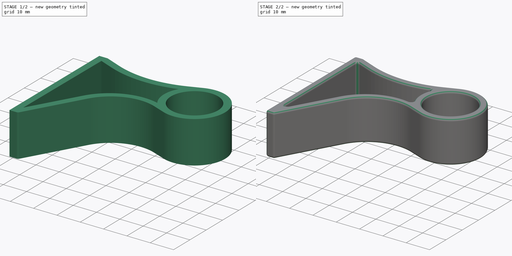
[diagram: build sequence overview — one tinted view per stage of 2, left to right]
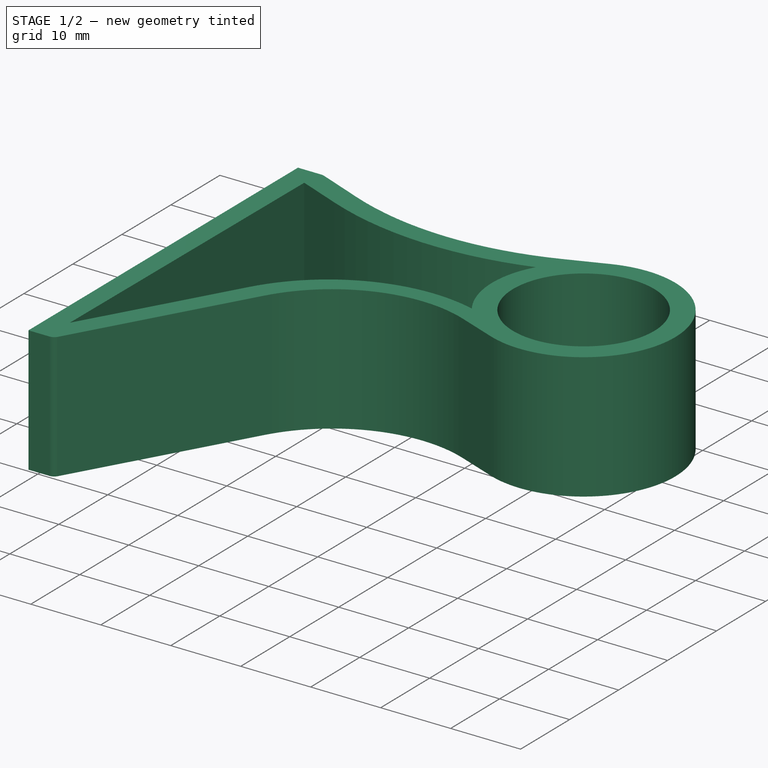
[diagram: stage 1 of 2 — iso view after this stage's code; geometry added in this stage tinted green]
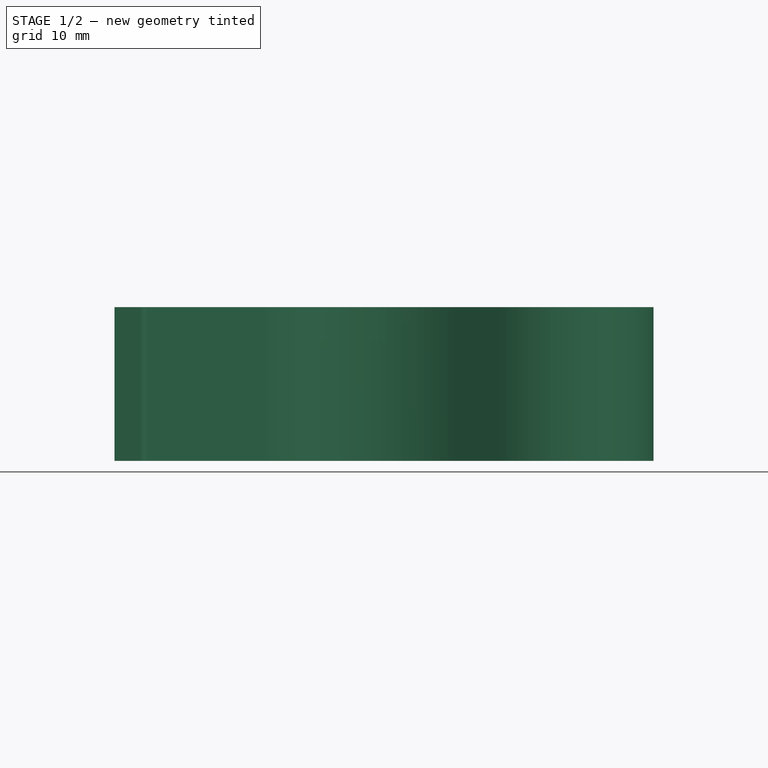
[diagram: stage 1 of 2 — front view after this stage's code; geometry added in this stage tinted green]
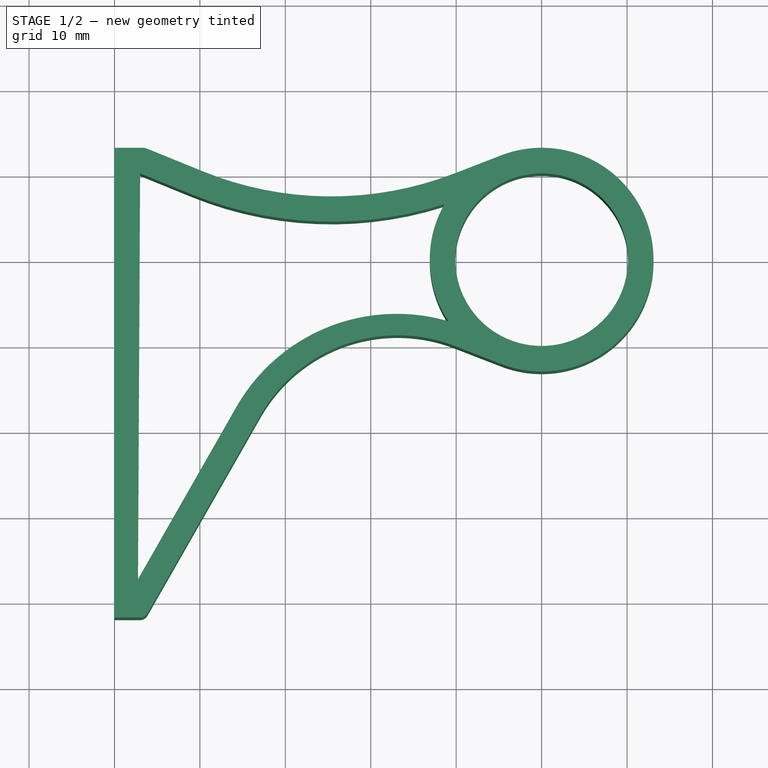
[diagram: stage 1 of 2 — top view after this stage's code; geometry added in this stage tinted green]
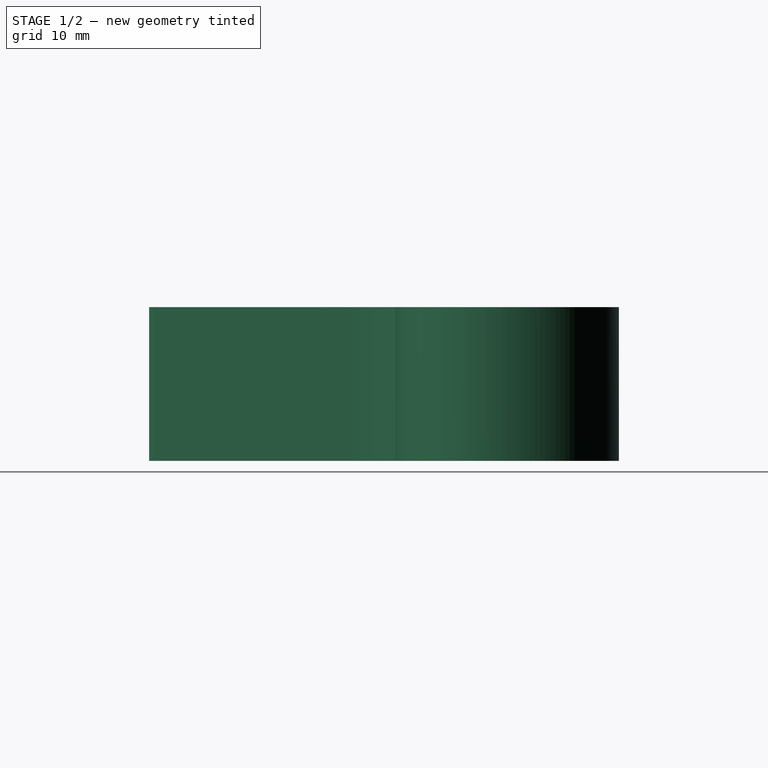
[diagram: stage 1 of 2 — right view after this stage's code; geometry added in this stage tinted green]
FCSTD DOCUMENT  (FreeCAD 1.0R38641 +468 (Git))
Label: ConduitMount
License: All rights reserved
LicenseURL: https://en.wikipedia.org/wiki/All_rights_reserved
objects: Sketcher::SketchObject×1, App::VarSet×1, PartDesign::Pad×1, PartDesign::Fillet×1, PartDesign::Body×1
note: 9 computed .brp shape members not serialized (recipe doc carries the construction recipe); baked Part::Feature solids carry a one-line shape summary decoded from their .brp

FEATURE [Sketcher::SketchObject] Sketch  label="MasterSketch"
  ArcFitTolerance = 1e-06
  AttachmentSupport = -> [XY_Plane]
  FullyConstrained = true
  MakeInternals = false
  MapMode = 5
  expr: Constraints[14] = VarSet.Base_ring_od / 2
  expr: Constraints[1] = VarSet.arm_len
  expr: Constraints[25] = VarSet.Base_ring_or / 3
  expr: Constraints[26] = VarSet.arm_len / 2
  expr: Constraints[2] = VarSet.Base_cut_dia
  expr: Constraints[43] = VarSet.Base_cut_dia / 2
  expr: Constraints[44] = VarSet.Base_cut_dia / 2
  expr: Constraints[4] = VarSet.Base_ring_od
  expr: Constraints[62] = VarSet.Base_thick
  expr: Constraints[74] = VarSet.Base_thick
  expr: Constraints[80] = VarSet.Base_thick
  expr: Constraints[85] = VarSet.Base_thick
  expr: Constraints[86] = VarSet.Base_thick
  expr: Constraints[87] = VarSet.Base_thick
  expr: Constraints[92] = VarSet.Base_thick
  expr: Constraints[93] = VarSet.Base_thick
  expr: Constraints[96] = VarSet.Base_thick
  sketch-geometry (42):
    g0: Circle CenterX=50 CenterY=0 CenterZ=0 NormalX=0 NormalY=0 NormalZ=1 AngleXU=0 Radius=10.1
    g1: ArcOfCircle CenterX=50 CenterY=0 CenterZ=0 NormalX=0 NormalY=0 NormalZ=1 AngleXU=0 Radius=13.1 StartAngle=4.34292 EndAngle=8.22345
    g2: LineSegment [constr] StartX=0 StartY=13.1 StartZ=0 EndX=0 EndY=-41.9 EndZ=0
    g3: LineSegment [constr] StartX=0 StartY=-41.9 StartZ=0 EndX=3.57221 EndY=-41.9 EndZ=0
    g4: LineSegment [constr] StartX=3.57221 StartY=-41.9 StartZ=0 EndX=3.57221 EndY=13.1 EndZ=0
    g5: LineSegment [constr] StartX=3.57221 StartY=13.1 StartZ=0 EndX=0 EndY=13.1 EndZ=0
    g6: LineSegment [constr] StartX=0 StartY=4.36667 StartZ=0 EndX=0 EndY=-4.36667 EndZ=0
    g7: LineSegment [constr] StartX=0 StartY=-4.36667 StartZ=0 EndX=25 EndY=-4.36667 EndZ=0
    g8: LineSegment [constr] StartX=25 StartY=-4.36667 StartZ=0 EndX=25 EndY=4.36667 EndZ=0
    g9: LineSegment [constr] StartX=25 StartY=4.36667 StartZ=0 EndX=0 EndY=4.36667 EndZ=0
    g10: LineSegment StartX=0 StartY=13.1 StartZ=0 EndX=3.37625 EndY=13.1 EndZ=0
    g11: LineSegment StartX=3.75368 StartY=13.026 StartZ=0 EndX=10.2977 EndY=10.3589 EndZ=0
    g12: LineSegment StartX=39.8052 StartY=10.1 StartZ=0 EndX=45.2693 EndY=12.216 EndZ=0
    g13: LineSegment StartX=0 StartY=13.1 StartZ=0 EndX=0 EndY=-41.9 EndZ=0
    g14: LineSegment StartX=0 StartY=-41.9 StartZ=0 EndX=2.99162 EndY=-41.9 EndZ=0
    g15: LineSegment StartX=3.86007 StartY=-41.3958 StartZ=0 EndX=17.1285 EndY=-18.1545 EndZ=0
    g16: LineSegment StartX=39.8052 StartY=-10.1 StartZ=0 EndX=45.2693 EndY=-12.216 EndZ=0
    g17: ArcOfCircle CenterX=25.3772 CenterY=47.3574 CenterZ=0 NormalX=0 NormalY=0 NormalZ=1 AngleXU=0 Radius=39.9535 StartAngle=4.32537 EndAngle=5.08186
    g18: GeomPoint [constr] X=25 Y=4.36667 Z=0
    g19: ArcOfCircle CenterX=33.1451 CenterY=-27.2984 CenterZ=0 NormalX=0 NormalY=0 NormalZ=1 AngleXU=0 Radius=18.4429 StartAngle=1.20133 EndAngle=2.62284
    g20: GeomPoint [constr] X=25 Y=-4.36667 Z=0
    g21: ArcOfCircle CenterX=3.37625 CenterY=12.1 CenterZ=0 NormalX=0 NormalY=0 NormalZ=1 AngleXU=0 Radius=1 StartAngle=1.18378 EndAngle=1.5708
    g22: GeomPoint [constr] X=3.57221 Y=13.1 Z=0
    g23: ArcOfCircle CenterX=2.99162 CenterY=-40.9 CenterZ=0 NormalX=0 NormalY=0 NormalZ=1 AngleXU=0 Radius=1 StartAngle=4.71239 EndAngle=5.76444
    g24: GeomPoint [constr] X=3.57221 Y=-41.9 Z=0
    g25: GeomPoint [constr] X=3.57221 Y=-41.9 Z=0
    g26: ArcOfCircle CenterX=25.4076 CenterY=47.9308 CenterZ=0 NormalX=0 NormalY=0 NormalZ=1 AngleXU=0 Radius=43.49 StartAngle=4.32537 EndAngle=5.0212
    g27: LineSegment StartX=3 StartY=10.1 StartZ=0 EndX=8.99332 EndY=7.6573 EndZ=0
    g28: LineSegment StartX=3 StartY=10.1 StartZ=0 EndX=2.75113 EndY=-37.4149 EndZ=0
    g29: LineSegment StartX=2.75113 StartY=-37.4149 StartZ=0 EndX=14.2743 EndY=-17.2306 EndZ=0
    g30: ArcOfCircle CenterX=33.0327 CenterY=-27.9397 CenterZ=0 NormalX=0 NormalY=0 NormalZ=1 AngleXU=0 Radius=21.6 StartAngle=1.28832 EndAngle=2.62284
    g31: LineSegment [constr] StartX=0 StartY=13.1 StartZ=0 EndX=0 EndY=10.1 EndZ=0
    g32: LineSegment [constr] StartX=0 StartY=10.1 StartZ=0 EndX=3 EndY=10.1 EndZ=0
    g33: LineSegment [constr] StartX=3 StartY=10.1 StartZ=0 EndX=3 EndY=13.1 EndZ=0
    g34: LineSegment [constr] StartX=3 StartY=13.1 StartZ=0 EndX=0 EndY=13.1 EndZ=0
    g35: LineSegment [constr] StartX=0 StartY=-41.9 StartZ=0 EndX=3 EndY=-41.9 EndZ=0
    g36: LineSegment [constr] StartX=5.60532 StartY=-38.3388 StartZ=0 EndX=3 EndY=-36.8514 EndZ=0
    g37: GeomPoint [constr] X=3 Y=-36.8514 Z=0
    g38: GeomPoint [constr] X=3 Y=-36.8514 Z=0
    g39: GeomPoint [constr] X=3 Y=-36.8514 Z=0
    g40: GeomPoint [constr] X=2.75113 Y=-37.4149 Z=0
    g41: ArcOfCircle CenterX=50 CenterY=0 CenterZ=0 NormalX=0 NormalY=0 NormalZ=1 AngleXU=0 Radius=13.1 StartAngle=2.62257 EndAngle=3.72311
  constraints (98):
    c: PointOnObject(g0,g-1)
    c: DistanceX(g-1,g0) = 50
    c: Diameter(g0) = 20.2
    c: Coincident(g1,g0)
    c: Diameter(g1) = 26.2
    c: Coincident(g2,g3)
    c: Coincident(g3,g4)
    c: Coincident(g4,g5)
    c: Coincident(g5,g2)
    c: Vertical(g2)
    c: Vertical(g4)
    c: Horizontal(g3)
    c: Horizontal(g5)
    c: PointOnObject(g2,g-2)
    c: DistanceY(g-1,g4) = 13.1
    c: DistanceY(g2,g2) = 55
    c: Coincident(g6,g7)
    c: Coincident(g7,g8)
    c: Coincident(g8,g9)
    c: Coincident(g9,g6)
    c: Vertical(g6)
    c: Vertical(g8)
    c: Horizontal(g7)
    c: Horizontal(g9)
    c: Symmetric(g6,g6,g-1)
    c: DistanceY(g-1,g8) = 4.36667
    c: DistanceX(g7,g7) = 25
    c: Coincident(g2,g10)
    c: Coincident(g22,g4)
    c: Coincident(g18,g8)
    c: Coincident(g2,g13)
    c: Coincident(g13,g2)
    c: Coincident(g13,g14)
    c: Coincident(g24,g3)
    c: Coincident(g20,g7)
    c: PointOnObject(g18,g11)
    c: PointOnObject(g18,g12)
    c: Tangent(g11,g17) = -1.5708
    c: Tangent(g12,g17) = -1.5708
    c: PointOnObject(g20,g16)
    c: PointOnObject(g20,g15)
    c: Tangent(g16,g19) = 1.5708
    c: Tangent(g15,g19) = 1.5708
    c: DistanceY(g-1,g12) = 10.1
    c: DistanceY(g16,g-1) = 10.1
    c: Tangent(g1,g12) = 1.5708
    c: Tangent(g1,g16) = -1.5708
    c: PointOnObject(g22,g10)
    c: PointOnObject(g22,g11)
    c: Tangent(g10,g21) = 1.5708
    c: Tangent(g11,g21) = 1.5708
    c: PointOnObject(g24,g14)
    c: PointOnObject(g24,g15)
    c: Tangent(g14,g23) = -1.5708
    c: Tangent(g15,g23) = -1.5708
    c: Radius(g23) = 1
    c: Radius(g21) = 1
    c: Coincident(g25,g3)
    c: Tangent(g26,g27) = -1.5708
    c: Coincident(g27,g28)
    c: Coincident(g28,g29)
    c: Tangent(g29,g30) = 1.5708
    c: Distance(g26,g11) = 3
    c: Coincident(g31,g32)
    c: Coincident(g32,g33)
    c: Coincident(g33,g34)
    c: Coincident(g34,g31)
    c: Vertical(g31)
    c: Vertical(g33)
    c: Horizontal(g32)
    c: Horizontal(g34)
    c: Coincident(g31,g2)
    c: Coincident(g32,g27)
    c: Equal(g33,g34)
    c: DistanceX(g32,g32) = 3
    c: Horizontal(g35)
    c: Coincident(g35,g2)
    c: Distance(g36) = 3
    c: PointOnObject(g36,g15)
    c: Perpendicular(g36,g15)
    c: Distance(g36,g13) = 3
    c: Coincident(g37,g36)
    c: Coincident(g38,g36)
    c: Coincident(g39,g36)
    c: Coincident(g40,g28)
    c: Distance(g15,g29) = 3
    c: Distance(g36,g28) = 3
    c: DistanceX(g-1,g35) = 3
    c: Angle(g11,g27) = 0
    c: Coincident(g41,g0)
    c: Coincident(g41,g30)
    c: Coincident(g41,g26)
    c: Distance(g26,g0) = 3
    c: Distance(g26,g17) = 3
    c: Radius(g30) = 21.6
    c: Radius(g26) = 43.49
    c: Distance(g16,g30) = 3
    c: Angle(g29,g15) = 0
FEATURE [App::VarSet] VarSet
  Base_bot_len = 41.9
  Base_cut_dia = 20.2
  Base_height = 18
  Base_pipe_dia = 20
  Base_ring_od = 26.2
  Base_ring_or = 13.1
  Base_thick = 3
  Base_wiggle = 0.2
  arm_len = 50
  expr: Base_bot_len = 55 mm - Base_ring_or
  expr: Base_cut_dia = Base_pipe_dia + Base_wiggle
  expr: Base_ring_od = Base_cut_dia + 2 * Base_thick
  expr: Base_ring_or = Base_ring_od / 2
FEATURE [PartDesign::Pad] Pad
  Direction = (0,0,1)
  Length = 18
  Length2 = 10
  Profile = -> Sketch
  ReferenceAxis = -> Sketch [N_Axis]
  Refine = true
  Suppressed = false
  Type = 0
  expr: Length = VarSet.Base_height
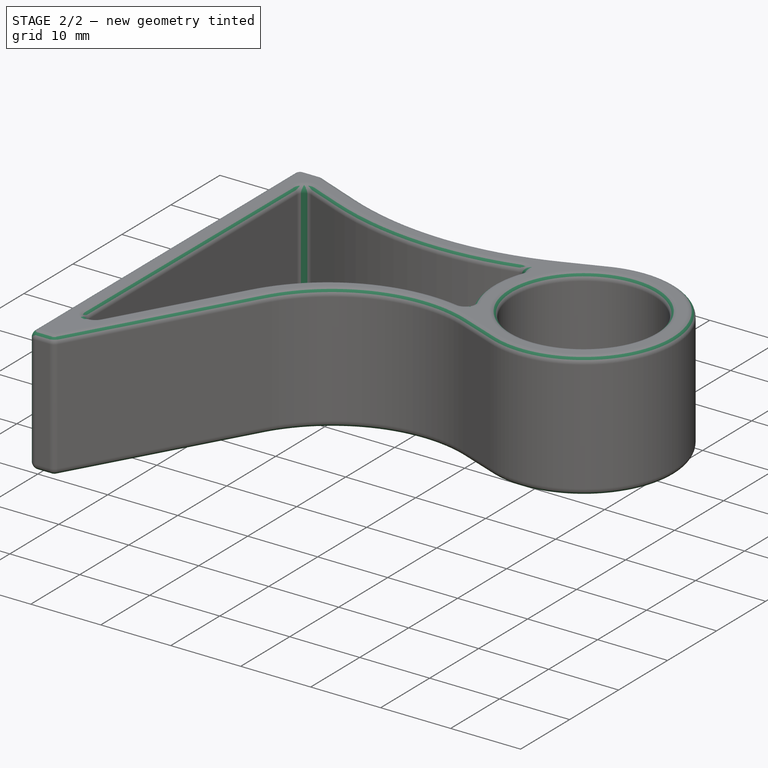
[diagram: stage 2 of 2 — iso view after this stage's code; geometry added in this stage tinted green]
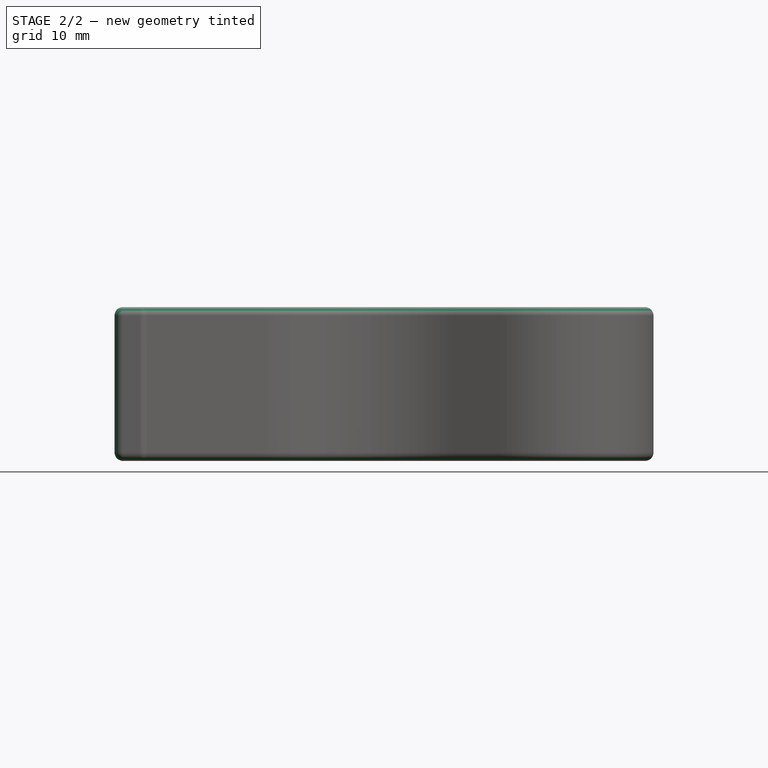
[diagram: stage 2 of 2 — front view after this stage's code; geometry added in this stage tinted green]
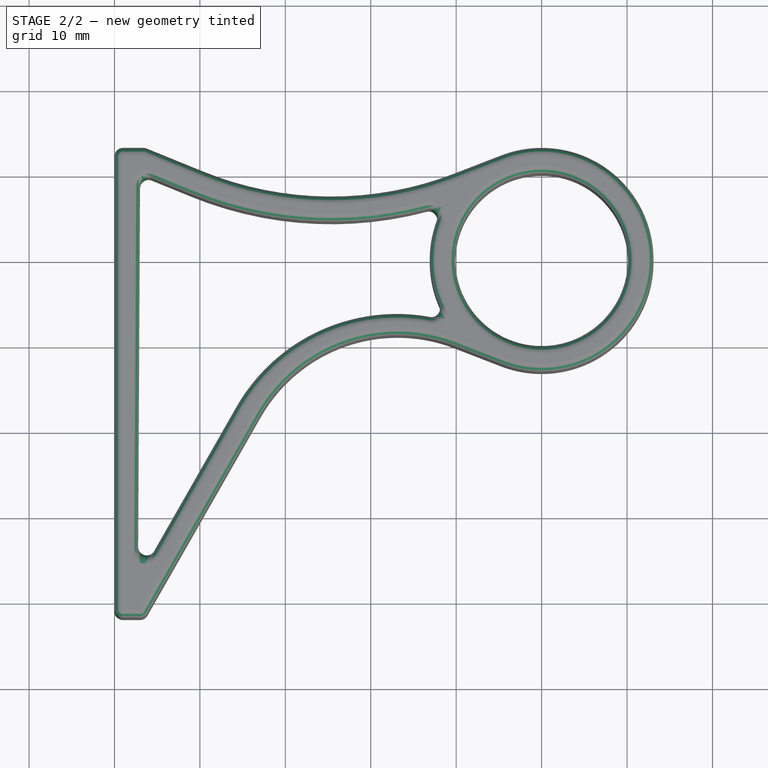
[diagram: stage 2 of 2 — top view after this stage's code; geometry added in this stage tinted green]
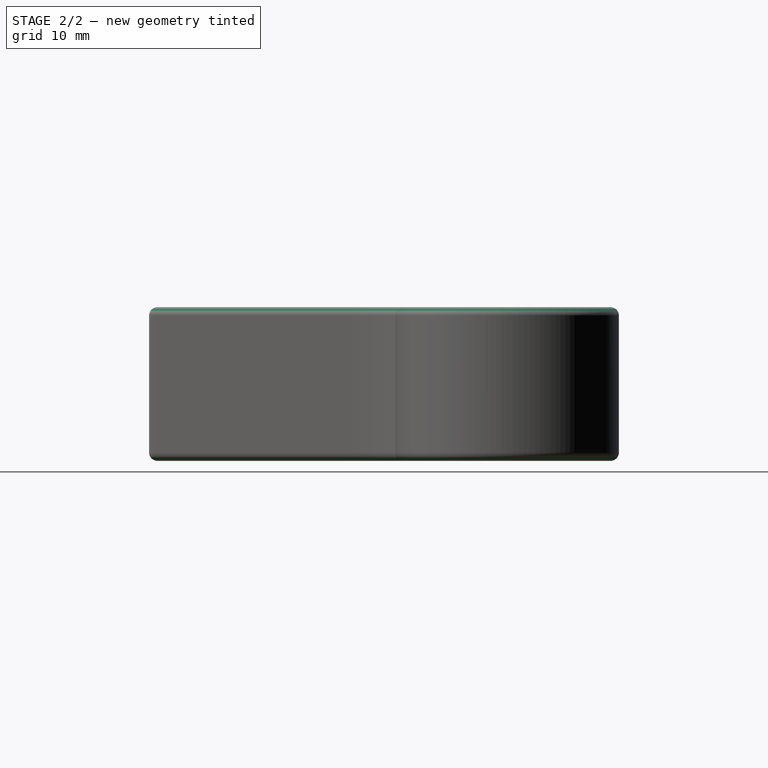
[diagram: stage 2 of 2 — right view after this stage's code; geometry added in this stage tinted green]
FEATURE [PartDesign::Fillet] Fillet
  Base = -> Pad [Edge1,Edge2,Edge3,Edge4,Edge5,Edge6,Edge7,Edge8,Edge9,Edge10,Edge11,Edge12,Edge13,Edge14,Edge15,Edge16,Edge17,Edge18,Edge19,Edge20,Edge21,Edge22,Edge23,Edge24,Edge25,Edge26,Edge27,Edge28,Edge29,Edge30,Edge31,Edge32,Edge33,Edge34,Edge35,Edge36,Edge37,Edge38,Edge39,Edge40,+17 more]
  BaseFeature = -> Pad
  Radius = 1
  Refine = true
  SupportTransform = false
  Suppressed = false
  UseAllEdges = true
FEATURE [PartDesign::Body] Body
  AllowCompound = false
  Group = -> [Sketch,Pad,Fillet]
  Origin = -> Origin
  Tip = -> Fillet
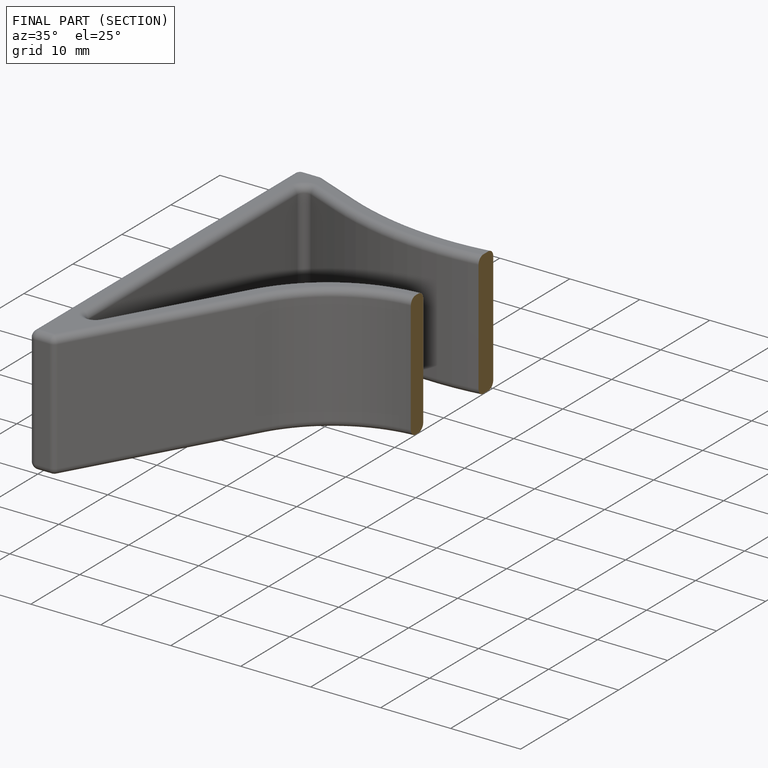
[diagram: finished part — half-section view (interior)]
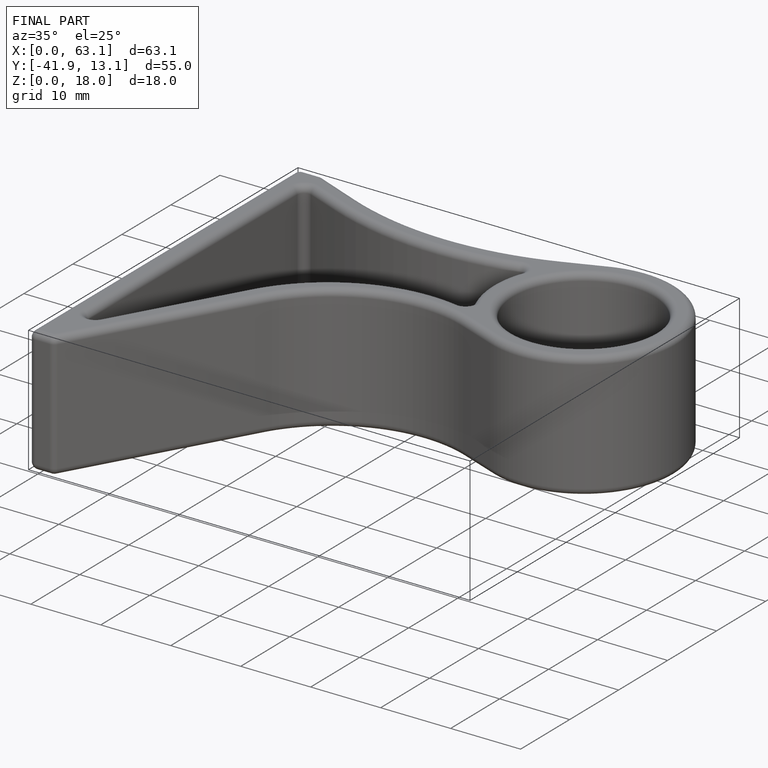
[diagram: finished part — iso view with bounding-box wireframe]
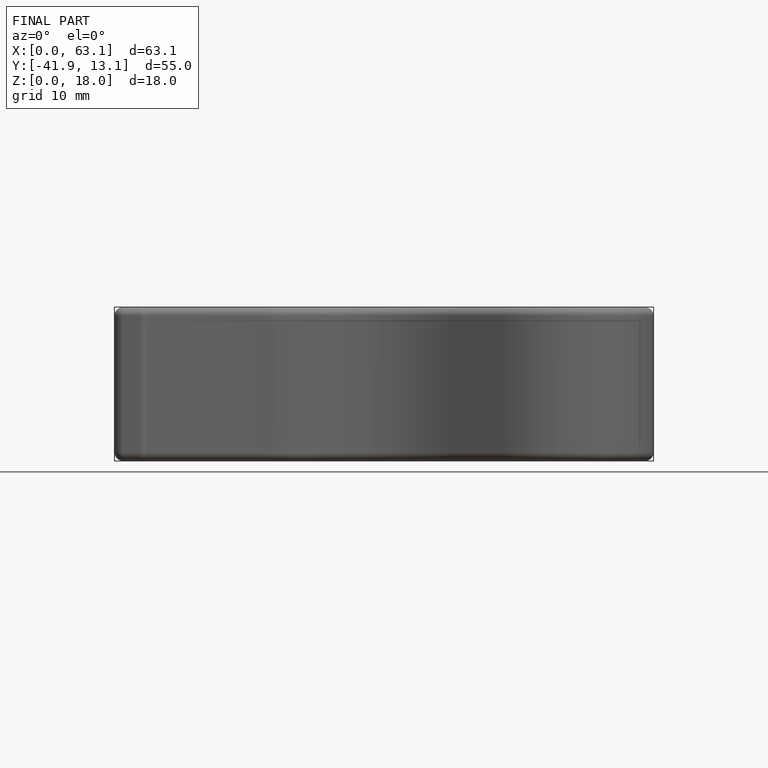
[diagram: finished part — front view with bounding-box wireframe]
